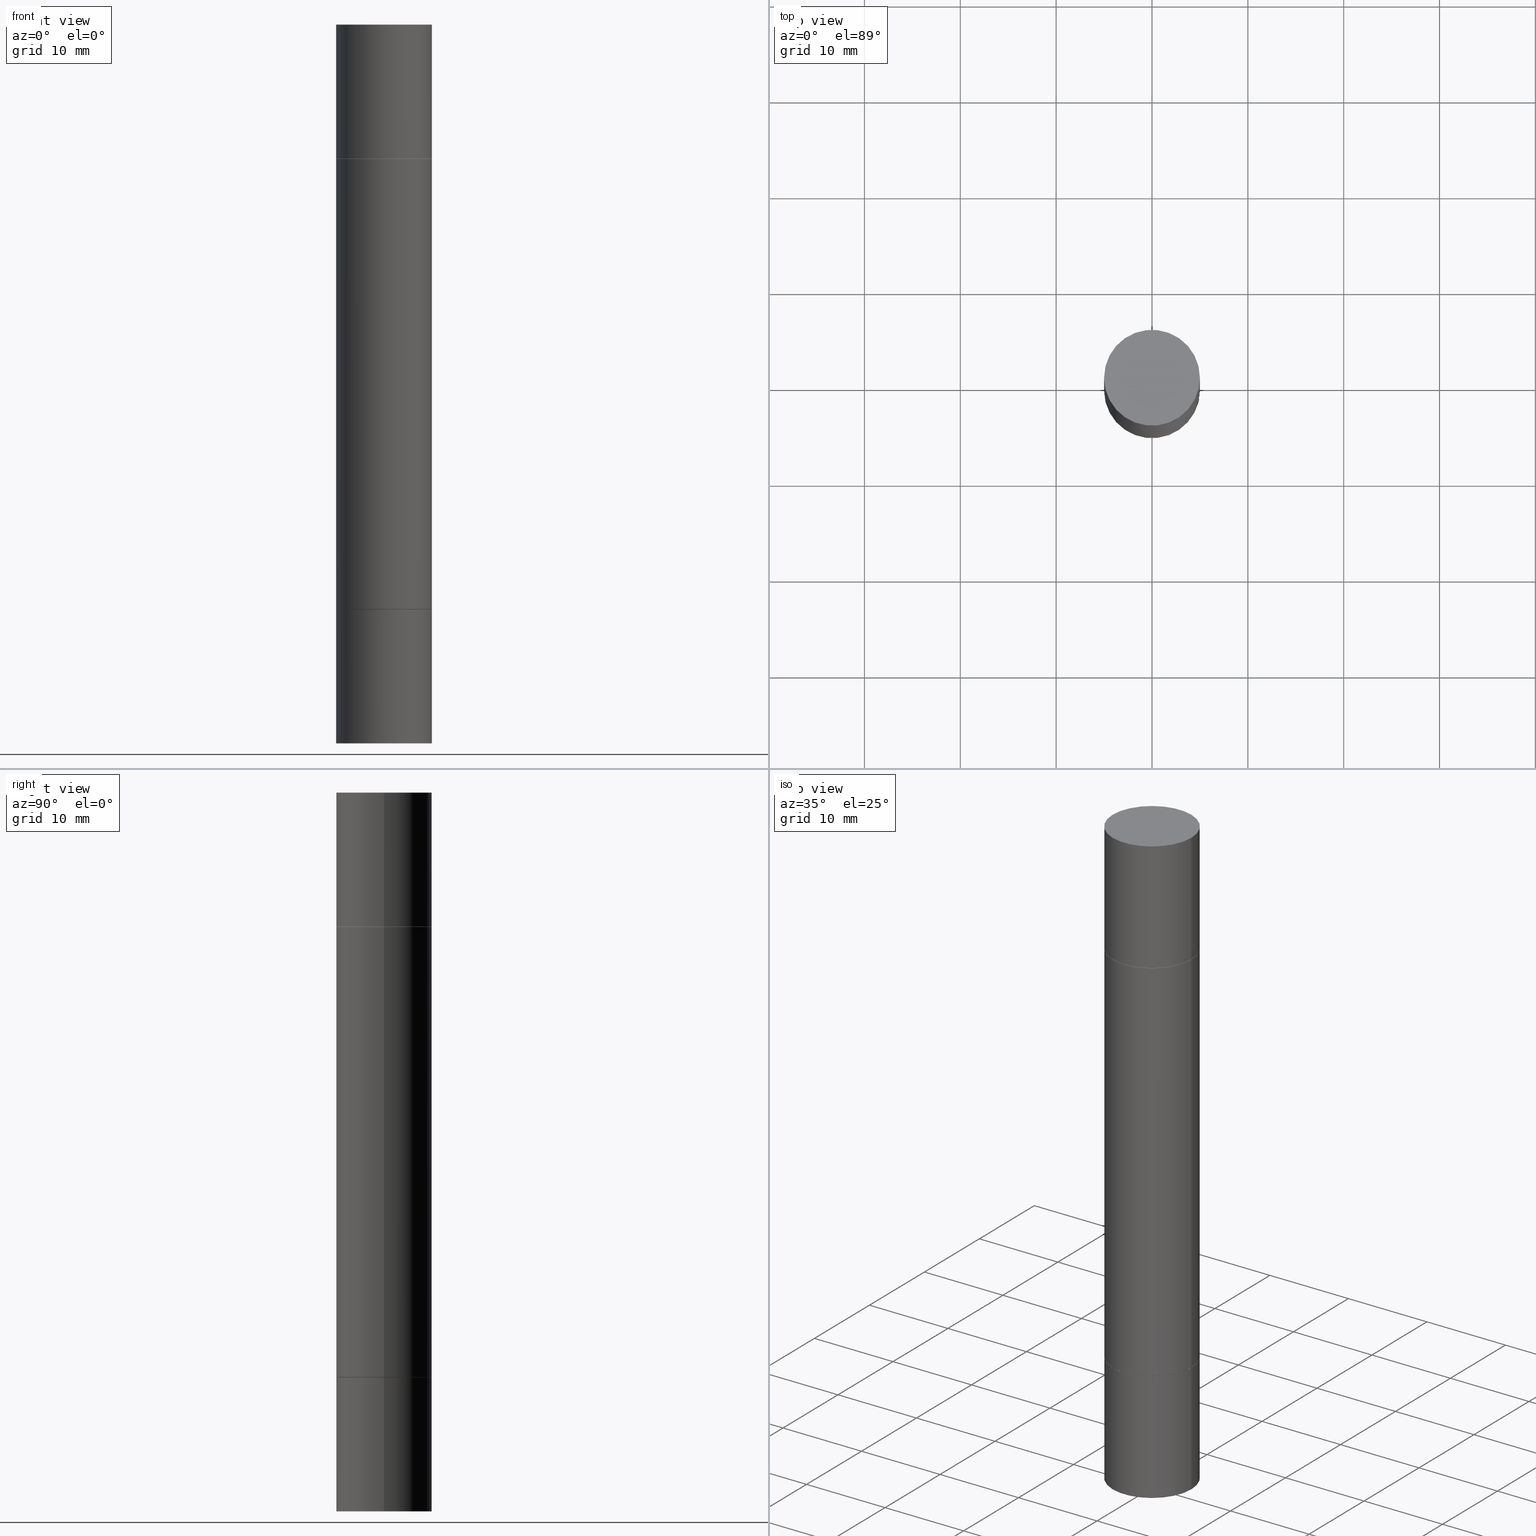
[diagram: canonical four-view strip — front | top / right | iso, engineering-drawing reading convention]
A machine part, canonical four-view strip (front | top / right | iso — engineering-drawing reading convention). The complete STEP part file that produces these views, byte-faithful:
ISO-10303-21;
HEADER;
FILE_DESCRIPTION (( 'STEP AP203' ),
    '1' );
FILE_NAME ('41557.STEP',
    '2024-03-04T15:46:23',
    ( '' ),
    ( '' ),
    'SwSTEP 2.0',
    'SolidWorks 2023',
    '' );
FILE_SCHEMA (( 'CONFIG_CONTROL_DESIGN' ));
ENDSEC;

DATA;
#1 = EDGE_LOOP ( 'NONE', ( #101, #27, #423, #283 ) ) ;
#2 = AXIS2_PLACEMENT_3D ( 'NONE', #414, #154, #259 ) ;
#3 = DIRECTION ( 'NONE',  ( -2.445468806185136877E-29, -3.492890411551753071E-15, -1.000000000000000000 ) ) ;
#4 = VERTEX_POINT ( 'NONE', #426 ) ;
#5 = ORIENTED_EDGE ( 'NONE', *, *, #65, .T. ) ;
#6 = CARTESIAN_POINT ( 'NONE',  ( -0.1968500000000000250, -5.762046994505618475E-16, -0.5521999999999996911 ) ) ;
#7 = CARTESIAN_POINT ( 'NONE',  ( -0.1968500000000000250, 3.899287883846529545E-16, 5.463695987328561936E-16 ) ) ;
#8 = FACE_OUTER_BOUND ( 'NONE', #1, .T. ) ;
#9 = ADVANCED_FACE ( 'NONE', ( #631 ), #562, .T. ) ;
#10 = DIRECTION ( 'NONE',  ( 2.445468806185136597E-29, 3.492890411551752677E-15, 1.000000000000000000 ) ) ;
#11 = ORIENTED_EDGE ( 'NONE', *, *, #138, .T. ) ;
#12 = DIRECTION ( 'NONE',  ( -2.445468806185136597E-29, -3.492890411551752677E-15, -1.000000000000000000 ) ) ;
#13 = AXIS2_PLACEMENT_3D ( 'NONE', #281, #490, #285 ) ;
#14 = AXIS2_PLACEMENT_3D ( 'NONE', #315, #522, #161 ) ;
#15 = CARTESIAN_POINT ( 'NONE',  ( -0.1958499999999999963, -6.993543635379541272E-15, -2.401599999999999735 ) ) ;
#16 = VERTEX_POINT ( 'NONE', #581 ) ;
#17 = DIRECTION ( 'NONE',  ( 2.445468806185136597E-29, 3.492890411551752677E-15, 1.000000000000000000 ) ) ;
#18 = PLANE ( 'NONE',  #629 ) ;
#19 = ORIENTED_EDGE ( 'NONE', *, *, #340, .T. ) ;
#20 = DIRECTION ( 'NONE',  ( -2.445468806185136597E-29, -3.492890411551752677E-15, -1.000000000000000000 ) ) ;
#21 = DIRECTION ( 'NONE',  ( 0.000000000000000000, 1.000000000000000000, -3.492185875197449524E-15 ) ) ;
#22 = ORIENTED_EDGE ( 'NONE', *, *, #548, .T. ) ;
#23 = PERSON_AND_ORGANIZATION_ROLE ( 'design_owner' ) ;
#24 = CIRCLE ( 'NONE', #378, 0.1958499999999999963 ) ;
#25 = CARTESIAN_POINT ( 'NONE',  ( 5.870592416128037625E-29, -1.926693730311889446E-15, -0.5521999999999996911 ) ) ;
#26 = EDGE_CURVE ( 'NONE', #311, #339, #107, .T. ) ;
#27 = ORIENTED_EDGE ( 'NONE', *, *, #532, .F. ) ;
#28 = APPROVAL_STATUS ( 'not_yet_approved' ) ;
#29 = AXIS2_PLACEMENT_3D ( 'NONE', #488, #235, #436 ) ;
#30 = DIRECTION ( 'NONE',  ( -0.7071067811864267805, 2.381258160590016583E-15, -0.7071067811866682540 ) ) ;
#31 = CALENDAR_DATE ( 2024, 4, 3 ) ;
#32 = ADVANCED_FACE ( 'NONE', ( #320 ), #255, .T. ) ;
#33 = FACE_OUTER_BOUND ( 'NONE', #528, .T. ) ;
#34 = MANIFOLD_SOLID_BREP ( 'Mirror1[3]', #256 ) ;
#35 = DATE_TIME_ROLE ( 'classification_date' ) ;
#36 = VECTOR ( 'NONE', #515, 39.37007874015748143 ) ;
#37 = DIRECTION ( 'NONE',  ( 2.445468806185136597E-29, 3.492890411551752677E-15, 1.000000000000000000 ) ) ;
#38 = CONICAL_SURFACE ( 'NONE', #353, 0.1958499999999999963, 0.7853981633972775267 ) ;
#39 = PLANE ( 'NONE',  #338 ) ;
#40 = MANIFOLD_SOLID_BREP ( 'Mirror1[1]', #499 ) ;
#41 = MANIFOLD_SOLID_BREP ( 'Body-Move/Copy2[1]', #459 ) ;
#42 = FACE_OUTER_BOUND ( 'NONE', #400, .T. ) ;
#43 = VERTEX_POINT ( 'NONE', #55 ) ;
#44 = DIRECTION ( 'NONE',  ( -2.445468806185136877E-29, -3.492890411551753071E-15, -1.000000000000000000 ) ) ;
#45 = AXIS2_PLACEMENT_3D ( 'NONE', #568, #96, #418 ) ;
#46 = CARTESIAN_POINT ( 'NONE',  ( 0.1968499999999998307, -1.168632265538556411E-14, -2.952799999999998981 ) ) ;
#47 = ORIENTED_EDGE ( 'NONE', *, *, #215, .T. ) ;
#48 = DIRECTION ( 'NONE',  ( 1.000000000000000000, -6.982962677686268288E-15, 0.000000000000000000 ) ) ;
#49 = PRODUCT_DEFINITION_FORMATION_WITH_SPECIFIED_SOURCE ( 'ANY', '', #430, .NOT_KNOWN. ) ;
#50 = ORIENTED_EDGE ( 'NONE', *, *, #113, .F. ) ;
#51 = CARTESIAN_POINT ( 'NONE',  ( -0.1968500000000000250, 3.899287883846532010E-16, -0.5511999999999995792 ) ) ;
#52 = EDGE_LOOP ( 'NONE', ( #187, #11 ) ) ;
#53 = ORIENTED_EDGE ( 'NONE', *, *, #147, .T. ) ;
#54 = DIRECTION ( 'NONE',  ( 2.438088387897960049E-29, -3.491481338843145188E-15, -1.000000000000000000 ) ) ;
#55 = CARTESIAN_POINT ( 'NONE',  ( -0.1968500000000000250, -7.948690465007109319E-15, -2.401599999999999735 ) ) ;
#56 = VECTOR ( 'NONE', #346, 39.37007874015748143 ) ;
#57 = EDGE_LOOP ( 'NONE', ( #292, #427 ) ) ;
#58 = CARTESIAN_POINT ( 'NONE',  ( 1.374596203102600181E-15, 0.1968499999999980543, -0.5512000000000001343 ) ) ;
#59 = LINE ( 'NONE', #118, #485 ) ;
#60 = FACE_OUTER_BOUND ( 'NONE', #419, .T. ) ;
#61 = EDGE_CURVE ( 'NONE', #335, #318, #158, .T. ) ;
#62 = DIRECTION ( 'NONE',  ( 1.000000000000000000, -6.982962677686262766E-15, 0.000000000000000000 ) ) ;
#63 = EDGE_LOOP ( 'NONE', ( #231, #497, #53, #451 ) ) ;
#64 = CIRCLE ( 'NONE', #466, 0.1968499999999998307 ) ;
#65 = EDGE_CURVE ( 'NONE', #261, #76, #609, .T. ) ;
#66 = CONICAL_SURFACE ( 'NONE', #279, 0.1958499999999999963, 0.7853981633972775267 ) ;
#67 = CARTESIAN_POINT ( 'NONE',  ( 5.873037884934223228E-29, -8.385141583365697263E-15, -2.401599999999999735 ) ) ;
#68 = VERTEX_POINT ( 'NONE', #176 ) ;
#69 = APPLICATION_PROTOCOL_DEFINITION ( 'international standard', 'config_control_design', 1994, #192 ) ;
#70 = AXIS2_PLACEMENT_3D ( 'NONE', #362, #534, #583 ) ;
#71 = DIRECTION ( 'NONE',  ( -2.438088387897960049E-29, 3.491481338843145188E-15, 1.000000000000000000 ) ) ;
#72 = ORIENTED_EDGE ( 'NONE', *, *, #363, .T. ) ;
#73 = CYLINDRICAL_SURFACE ( 'NONE', #193, 0.1968499999999998307 ) ;
#74 = LOCAL_TIME ( 10, 46, 23.00000000000000000, #85 ) ;
#75 = CARTESIAN_POINT ( 'NONE',  ( 0.000000000000000000, 0.000000000000000000, -1.476399999999999491 ) ) ;
#76 = VERTEX_POINT ( 'NONE', #536 ) ;
#77 = AXIS2_PLACEMENT_3D ( 'NONE', #328, #164, #634 ) ;
#78 = DIRECTION ( 'NONE',  ( 1.000000000000000000, -6.982962677686265922E-15, 4.876176775795935793E-29 ) ) ;
#79 = CC_DESIGN_PERSON_AND_ORGANIZATION_ASSIGNMENT ( #191, #608, ( #49 ) ) ;
#80 = CIRCLE ( 'NONE', #641, 0.1968500000000000250 ) ;
#81 = DIRECTION ( 'NONE',  ( -2.445468806185136597E-29, 3.491481338843145583E-15, 1.000000000000000000 ) ) ;
#82 = CALENDAR_DATE ( 2024, 4, 3 ) ;
#83 = LOCAL_TIME ( 10, 46, 23.00000000000000000, #455 ) ;
#84 = FACE_OUTER_BOUND ( 'NONE', #650, .T. ) ;
#85 = COORDINATED_UNIVERSAL_TIME_OFFSET ( 5, 0, .BEHIND. ) ;
#86 = CARTESIAN_POINT ( 'NONE',  ( 5.873037884934223228E-29, -1.923200839900334937E-15, -0.5511999999999992461 ) ) ;
#87 = AXIS2_PLACEMENT_3D ( 'NONE', #342, #481, #549 ) ;
#88 = ADVANCED_FACE ( 'NONE', ( #450 ), #276, .T. ) ;
#89 = PRODUCT_RELATED_PRODUCT_CATEGORY ( 'detail', '', ( #430 ) ) ;
#90 = CIRCLE ( 'NONE', #70, 0.1958499999999999963 ) ;
#91 = CARTESIAN_POINT ( 'NONE',  ( 5.873037884934223228E-29, -8.385141583365697263E-15, -2.401599999999999735 ) ) ;
#92 = PRODUCT_DEFINITION ( 'UNKNOWN', '', #49, #652 ) ;
#93 = DIRECTION ( 'NONE',  ( -2.445468806185136877E-29, -3.492890411551753071E-15, -1.000000000000000000 ) ) ;
#94 = VERTEX_POINT ( 'NONE', #639 ) ;
#95 = ADVANCED_FACE ( 'NONE', ( #337 ), #539, .T. ) ;
#96 = DIRECTION ( 'NONE',  ( -2.445468806185136597E-29, -3.492890411551752677E-15, -1.000000000000000000 ) ) ;
#97 = ORIENTED_EDGE ( 'NONE', *, *, #670, .T. ) ;
#98 = AXIS2_PLACEMENT_3D ( 'NONE', #573, #314, #132 ) ;
#99 = DIRECTION ( 'NONE',  ( -2.445468806185136597E-29, 3.491481338843145583E-15, 1.000000000000000000 ) ) ;
#100 = VECTOR ( 'NONE', #44, 39.37007874015748143 ) ;
#101 = ORIENTED_EDGE ( 'NONE', *, *, #207, .F. ) ;
#102 = CARTESIAN_POINT ( 'NONE',  ( -0.1958499999999999963, -5.778885032436711881E-16, -0.5511999999999992461 ) ) ;
#103 = SECURITY_CLASSIFICATION ( '', '', #558 ) ;
#104 = ORIENTED_EDGE ( 'NONE', *, *, #126, .T. ) ;
#105 = ORIENTED_EDGE ( 'NONE', *, *, #452, .T. ) ;
#106 = CARTESIAN_POINT ( 'NONE',  ( 5.870592416128037625E-29, -8.381650102026854256E-15, -2.400599999999999401 ) ) ;
#107 = LINE ( 'NONE', #46, #584 ) ;
#108 = VERTEX_POINT ( 'NONE', #590 ) ;
#109 = PLANE ( 'NONE',  #564 ) ;
#110 = CLOSED_SHELL ( 'NONE', ( #127, #247, #469, #219, #9, #144, #268, #152 ) ) ;
#111 = PRODUCT_DEFINITION_SHAPE ( 'NONE', 'NONE',  #92 ) ;
#112 = CARTESIAN_POINT ( 'NONE',  ( 0.000000000000000000, -1.031172645228302408E-14, -2.952799999999998981 ) ) ;
#113 = EDGE_CURVE ( 'NONE', #628, #43, #59, .T. ) ;
#114 = VECTOR ( 'NONE', #244, 39.37007874015748143 ) ;
#115 = VERTEX_POINT ( 'NONE', #7 ) ;
#116 = DIRECTION ( 'NONE',  ( -2.445468806185136597E-29, -3.492890411551752677E-15, -1.000000000000000000 ) ) ;
#117 = AXIS2_PLACEMENT_3D ( 'NONE', #580, #525, #48 ) ;
#118 = CARTESIAN_POINT ( 'NONE',  ( -0.1968500000000000250, 1.398703375343757393E-15, -9.682923725166783677E-30 ) ) ;
#119 = CC_DESIGN_SECURITY_CLASSIFICATION ( #103, ( #49 ) ) ;
#120 = VERTEX_POINT ( 'NONE', #179 ) ;
#121 = DIRECTION ( 'NONE',  ( 0.000000000000000000, 0.000000000000000000, 1.000000000000000000 ) ) ;
#122 = VECTOR ( 'NONE', #483, 39.37007874015748143 ) ;
#123 = CARTESIAN_POINT ( 'NONE',  ( 5.873037884934223228E-29, -1.923200839900334937E-15, -0.5511999999999992461 ) ) ;
#124 = VERTEX_POINT ( 'NONE', #233 ) ;
#125 = MECHANICAL_CONTEXT ( 'NONE', #170, 'mechanical' ) ;
#126 = EDGE_CURVE ( 'NONE', #622, #94, #646, .T. ) ;
#127 = ADVANCED_FACE ( 'NONE', ( #230 ), #66, .T. ) ;
#128 = PLANE ( 'NONE',  #13 ) ;
#129 = VERTEX_POINT ( 'NONE', #545 ) ;
#130 = APPLICATION_PROTOCOL_DEFINITION ( 'international standard', 'config_control_design', 1994, #170 ) ;
#131 = CIRCLE ( 'NONE', #610, 0.1968500000000000250 ) ;
#132 = DIRECTION ( 'NONE',  ( 1.000000000000000000, -6.982962677686265922E-15, 0.000000000000000000 ) ) ;
#133 = ORIENTED_EDGE ( 'NONE', *, *, #305, .F. ) ;
#134 = FACE_OUTER_BOUND ( 'NONE', #159, .T. ) ;
#135 = CARTESIAN_POINT ( 'NONE',  ( -0.1968500000000000250, 3.899287883846532010E-16, -0.5511999999999995792 ) ) ;
#136 = ORIENTED_EDGE ( 'NONE', *, *, #390, .F. ) ;
#137 = CARTESIAN_POINT ( 'NONE',  ( 5.873037884934223228E-29, -8.385141583365697263E-15, -2.401599999999999735 ) ) ;
#138 = EDGE_CURVE ( 'NONE', #520, #129, #661, .T. ) ;
#139 = APPROVAL_ROLE ( '' ) ;
#140 = AXIS2_PLACEMENT_3D ( 'NONE', #266, #677, #322 ) ;
#141 = DIRECTION ( 'NONE',  ( 1.000000000000000000, -6.982962677686262766E-15, 0.000000000000000000 ) ) ;
#142 = CC_DESIGN_DATE_AND_TIME_ASSIGNMENT ( #148, #35, ( #103 ) ) ;
#143 = APPROVAL_DATE_TIME ( #560, #447 ) ;
#144 = ADVANCED_FACE ( 'NONE', ( #325 ), #224, .T. ) ;
#145 = ORGANIZATION ( 'UNSPECIFIED', 'UNSPECIFIED', '' ) ;
#146 = CYLINDRICAL_SURFACE ( 'NONE', #350, 0.1968499999999998307 ) ;
#147 = EDGE_CURVE ( 'NONE', #582, #432, #680, .T. ) ;
#148 = DATE_AND_TIME ( #509, #83 ) ;
#149 = DIRECTION ( 'NONE',  ( -2.445468806185136597E-29, 3.491481338843145583E-15, 1.000000000000000000 ) ) ;
#150 = AXIS2_PLACEMENT_3D ( 'NONE', #236, #149, #357 ) ;
#151 = CARTESIAN_POINT ( 'NONE',  ( 1.374596203102613789E-15, 0.1968500000000000250, -5.463695987328526437E-16 ) ) ;
#152 = ADVANCED_FACE ( 'NONE', ( #642 ), #592, .F. ) ;
#153 =( GEOMETRIC_REPRESENTATION_CONTEXT ( 3 ) GLOBAL_UNCERTAINTY_ASSIGNED_CONTEXT ( ( #445 ) ) GLOBAL_UNIT_ASSIGNED_CONTEXT ( ( #341, #552, #648 ) ) REPRESENTATION_CONTEXT ( 'NONE', 'WORKASPACE' ) );
#154 = DIRECTION ( 'NONE',  ( 2.445468806185136597E-29, 3.492890411551752677E-15, 1.000000000000000000 ) ) ;
#155 = CARTESIAN_POINT ( 'NONE',  ( 5.873037884934223228E-29, -1.923200839900334937E-15, -0.5511999999999992461 ) ) ;
#156 = DIRECTION ( 'NONE',  ( 2.438088387897959769E-29, 3.492890411551753071E-15, 1.000000000000000000 ) ) ;
#157 = LINE ( 'NONE', #674, #173 ) ;
#158 = LINE ( 'NONE', #635, #290 ) ;
#159 = EDGE_LOOP ( 'NONE', ( #271, #105, #19, #133 ) ) ;
#160 = EDGE_CURVE ( 'NONE', #335, #622, #24, .T. ) ;
#161 = DIRECTION ( 'NONE',  ( 1.000000000000000000, -6.982962677686267499E-15, 0.000000000000000000 ) ) ;
#162 = CIRCLE ( 'NONE', #477, 0.1968500000000000250 ) ;
#163 = ORIENTED_EDGE ( 'NONE', *, *, #326, .F. ) ;
#164 = DIRECTION ( 'NONE',  ( -2.445468806185136597E-29, -3.492890411551752677E-15, -1.000000000000000000 ) ) ;
#165 = CC_DESIGN_APPROVAL ( #574, ( #103 ) ) ;
#166 = ORIENTED_EDGE ( 'NONE', *, *, #489, .F. ) ;
#167 = ORIENTED_EDGE ( 'NONE', *, *, #126, .F. ) ;
#168 = FACE_OUTER_BOUND ( 'NONE', #567, .T. ) ;
#169 = DIRECTION ( 'NONE',  ( -0.7071067811864267805, 7.493145998869918709E-15, 0.7071067811866682540 ) ) ;
#170 = APPLICATION_CONTEXT ( 'configuration controlled 3d designs of mechanical parts and assemblies' ) ;
#171 = LINE ( 'NONE', #277, #122 ) ;
#172 = DIRECTION ( 'NONE',  ( 1.000000000000000000, -6.982962677686267499E-15, 0.000000000000000000 ) ) ;
#173 = VECTOR ( 'NONE', #93, 39.37007874015748143 ) ;
#174 = ORIENTED_EDGE ( 'NONE', *, *, #326, .T. ) ;
#175 = FACE_OUTER_BOUND ( 'NONE', #420, .T. ) ;
#176 = CARTESIAN_POINT ( 'NONE',  ( 0.1968500000000000250, -3.297797043002877729E-15, -0.5511999999999995792 ) ) ;
#177 = ORIENTED_EDGE ( 'NONE', *, *, #363, .F. ) ;
#178 = CARTESIAN_POINT ( 'NONE',  ( 0.1968500000000000250, -3.297797043002877729E-15, -0.5511999999999995792 ) ) ;
#179 = CARTESIAN_POINT ( 'NONE',  ( -0.1968499999999998307, -2.190269358628626559E-15, -1.476399999999999491 ) ) ;
#180 = EDGE_LOOP ( 'NONE', ( #50, #47, #72, #415 ) ) ;
#181 = CARTESIAN_POINT ( 'NONE',  ( 0.000000000000000000, -1.031172645228302408E-14, -2.952799999999998981 ) ) ;
#182 = ADVANCED_FACE ( 'NONE', ( #595 ), #128, .T. ) ;
#183 = FACE_OUTER_BOUND ( 'NONE', #442, .T. ) ;
#184 = ORIENTED_EDGE ( 'NONE', *, *, #381, .T. ) ;
#185 = AXIS2_PLACEMENT_3D ( 'NONE', #617, #518, #309 ) ;
#186 = CARTESIAN_POINT ( 'NONE',  ( -0.1958499999999999963, -5.795723070367805287E-16, -0.5511999999999992461 ) ) ;
#187 = ORIENTED_EDGE ( 'NONE', *, *, #507, .T. ) ;
#188 = DIRECTION ( 'NONE',  ( 1.000000000000000000, -6.982962677686267499E-15, 0.000000000000000000 ) ) ;
#189 = ADVANCED_FACE ( 'NONE', ( #494 ), #18, .T. ) ;
#190 = LINE ( 'NONE', #291, #258 ) ;
#191 = PERSON_AND_ORGANIZATION ( #565, #145 ) ;
#192 = APPLICATION_CONTEXT ( 'configuration controlled 3d designs of mechanical parts and assemblies' ) ;
#193 = AXIS2_PLACEMENT_3D ( 'NONE', #181, #336, #232 ) ;
#194 = VECTOR ( 'NONE', #169, 39.37007874015748143 ) ;
#195 = DIRECTION ( 'NONE',  ( 1.000000000000000000, -6.982962677686267499E-15, 0.000000000000000000 ) ) ;
#196 = CALENDAR_DATE ( 2024, 4, 3 ) ;
#197 = CONICAL_SURFACE ( 'NONE', #575, 0.1958499999999999963, 0.7853981633972775267 ) ;
#198 = ADVANCED_FACE ( 'NONE', ( #183 ), #601, .F. ) ;
#199 = CARTESIAN_POINT ( 'NONE',  ( 0.1968500000000000250, -1.168632265538556569E-14, -2.952799999999998981 ) ) ;
#200 = DATE_AND_TIME ( #664, #74 ) ;
#201 = EDGE_CURVE ( 'NONE', #43, #16, #672, .T. ) ;
#202 = AXIS2_PLACEMENT_3D ( 'NONE', #503, #20, #293 ) ;
#203 = DIRECTION ( 'NONE',  ( -2.445468806185136877E-29, -3.492890411551753071E-15, -1.000000000000000000 ) ) ;
#204 = EDGE_CURVE ( 'NONE', #108, #115, #302, .T. ) ;
#205 = LINE ( 'NONE', #358, #556 ) ;
#206 = AXIS2_PLACEMENT_3D ( 'NONE', #25, #37, #251 ) ;
#207 = EDGE_CURVE ( 'NONE', #344, #120, #190, .T. ) ;
#208 = DIRECTION ( 'NONE',  ( 1.000000000000000000, -6.982962677686267499E-15, 0.000000000000000000 ) ) ;
#209 = ORIENTED_EDGE ( 'NONE', *, *, #207, .T. ) ;
#210 = CYLINDRICAL_SURFACE ( 'NONE', #45, 0.1968499999999998307 ) ;
#211 = DIRECTION ( 'NONE',  ( 1.000000000000000000, -6.982962677686267499E-15, 0.000000000000000000 ) ) ;
#212 = DIRECTION ( 'NONE',  ( 1.000000000000000000, -6.982962677686267499E-15, 0.000000000000000000 ) ) ;
#213 = ORIENTED_EDGE ( 'NONE', *, *, #463, .F. ) ;
#214 = DIRECTION ( 'NONE',  ( 1.000000000000000000, -6.982962677686268288E-15, 0.000000000000000000 ) ) ;
#215 = EDGE_CURVE ( 'NONE', #628, #492, #588, .T. ) ;
#216 = VECTOR ( 'NONE', #417, 39.37007874015748143 ) ;
#217 = ORIENTED_EDGE ( 'NONE', *, *, #390, .T. ) ;
#218 = DIRECTION ( 'NONE',  ( 2.445468806185136597E-29, 3.492890411551752677E-15, 1.000000000000000000 ) ) ;
#219 = ADVANCED_FACE ( 'NONE', ( #303 ), #294, .F. ) ;
#220 = LOCAL_TIME ( 10, 46, 23.00000000000000000, #660 ) ;
#221 = ORIENTED_EDGE ( 'NONE', *, *, #160, .T. ) ;
#222 = ORIENTED_EDGE ( 'NONE', *, *, #305, .T. ) ;
#223 = DIRECTION ( 'NONE',  ( -1.000000000000000000, 6.982962677686265922E-15, -9.839502134516470631E-33 ) ) ;
#224 = CYLINDRICAL_SURFACE ( 'NONE', #87, 0.1968499999999998307 ) ;
#225 = ORIENTED_EDGE ( 'NONE', *, *, #443, .F. ) ;
#226 = DIRECTION ( 'NONE',  ( 2.445468806185136597E-29, 3.492890411551752677E-15, 1.000000000000000000 ) ) ;
#227 = CIRCLE ( 'NONE', #206, 0.1968500000000000250 ) ;
#228 = ORIENTED_EDGE ( 'NONE', *, *, #333, .T. ) ;
#229 = DIRECTION ( 'NONE',  ( 1.000000000000000000, -6.982962677686268288E-15, 0.000000000000000000 ) ) ;
#230 = FACE_OUTER_BOUND ( 'NONE', #551, .T. ) ;
#231 = ORIENTED_EDGE ( 'NONE', *, *, #138, .F. ) ;
#232 = DIRECTION ( 'NONE',  ( 1.000000000000000000, -6.982962677686264344E-15, 0.000000000000000000 ) ) ;
#233 = CARTESIAN_POINT ( 'NONE',  ( 0.1958499999999999963, -3.290814080325190531E-15, -0.5511999999999992461 ) ) ;
#234 = ORIENTED_EDGE ( 'NONE', *, *, #463, .T. ) ;
#235 = DIRECTION ( 'NONE',  ( -0.000000000000000000, -3.492185875197449130E-15, -1.000000000000000000 ) ) ;
#236 = CARTESIAN_POINT ( 'NONE',  ( 5.873037884934223228E-29, -8.385141583365697263E-15, -2.401599999999999735 ) ) ;
#237 = ORIENTED_EDGE ( 'NONE', *, *, #355, .F. ) ;
#238 = APPROVAL_STATUS ( 'not_yet_approved' ) ;
#239 = CIRCLE ( 'NONE', #185, 0.1968500000000000250 ) ;
#240 = DIRECTION ( 'NONE',  ( -2.445468806185136597E-29, -3.492890411551752677E-15, -1.000000000000000000 ) ) ;
#241 = ORIENTED_EDGE ( 'NONE', *, *, #443, .T. ) ;
#242 = LOCAL_TIME ( 10, 46, 23.00000000000000000, #298 ) ;
#243 = PERSON_AND_ORGANIZATION ( #565, #145 ) ;
#244 = DIRECTION ( 'NONE',  ( 0.7071067811864267805, -7.407546758113824138E-15, -0.7071067811866682540 ) ) ;
#245 = CONICAL_SURFACE ( 'NONE', #77, 0.1958499999999999963, 0.7853981633972775267 ) ;
#246 = PERSON_AND_ORGANIZATION ( #565, #145 ) ;
#247 = ADVANCED_FACE ( 'NONE', ( #84 ), #146, .T. ) ;
#248 = CARTESIAN_POINT ( 'NONE',  ( 0.1968500000000000250, -1.372515848155552113E-15, 5.463695987328526437E-16 ) ) ;
#249 = PERSON_AND_ORGANIZATION_ROLE ( 'creator' ) ;
#250 = AXIS2_PLACEMENT_3D ( 'NONE', #75, #288, #21 ) ;
#251 = DIRECTION ( 'NONE',  ( 1.000000000000000000, -6.982962677686267499E-15, 0.000000000000000000 ) ) ;
#252 = CARTESIAN_POINT ( 'NONE',  ( 0.1968500000000000250, -9.756246305129394287E-15, -2.400599999999999401 ) ) ;
#253 = APPROVAL_DATE_TIME ( #200, #574 ) ;
#254 = PLANE ( 'NONE',  #535 ) ;
#255 = CYLINDRICAL_SURFACE ( 'NONE', #517, 0.1968500000000000250 ) ;
#256 = CLOSED_SHELL ( 'NONE', ( #88, #182, #616, #95 ) ) ;
#257 = EDGE_CURVE ( 'NONE', #520, #582, #607, .T. ) ;
#258 = VECTOR ( 'NONE', #203, 39.37007874015748143 ) ;
#259 = DIRECTION ( 'NONE',  ( 1.000000000000000000, -6.982962677686267499E-15, 0.000000000000000000 ) ) ;
#260 = DIRECTION ( 'NONE',  ( -2.445468806185136877E-29, -3.492890411551753071E-15, -1.000000000000000000 ) ) ;
#261 = VERTEX_POINT ( 'NONE', #248 ) ;
#262 = CARTESIAN_POINT ( 'NONE',  ( 5.873037884934223228E-29, -1.923200839900336120E-15, -0.5511999999999995792 ) ) ;
#263 = CC_DESIGN_DATE_AND_TIME_ASSIGNMENT ( #408, #615, ( #92 ) ) ;
#264 = CC_DESIGN_PERSON_AND_ORGANIZATION_ASSIGNMENT ( #651, #23, ( #430 ) ) ;
#265 = ORIENTED_EDGE ( 'NONE', *, *, #304, .F. ) ;
#266 = CARTESIAN_POINT ( 'NONE',  ( 0.000000000000000000, 0.000000000000000000, 0.000000000000000000 ) ) ;
#267 = ORIENTED_EDGE ( 'NONE', *, *, #287, .T. ) ;
#268 = ADVANCED_FACE ( 'NONE', ( #33 ), #406, .T. ) ;
#269 = CARTESIAN_POINT ( 'NONE',  ( 5.873037884934223228E-29, -1.923200839900334937E-15, -0.5511999999999992461 ) ) ;
#270 = CIRCLE ( 'NONE', #468, 0.1968500000000000250 ) ;
#271 = ORIENTED_EDGE ( 'NONE', *, *, #570, .F. ) ;
#272 = MANIFOLD_SOLID_BREP ( 'Mirror1[4]', #299 ) ;
#273 = ORIENTED_EDGE ( 'NONE', *, *, #287, .F. ) ;
#274 = LINE ( 'NONE', #371, #369 ) ;
#275 = CC_DESIGN_APPROVAL ( #331, ( #49 ) ) ;
#276 = CYLINDRICAL_SURFACE ( 'NONE', #510, 0.1968500000000000250 ) ;
#277 = CARTESIAN_POINT ( 'NONE',  ( 0.1968500000000000250, -1.168632265538556569E-14, -2.952799999999998981 ) ) ;
#278 = DIRECTION ( 'NONE',  ( -2.445468806185136597E-29, -3.492890411551752677E-15, -1.000000000000000000 ) ) ;
#279 = AXIS2_PLACEMENT_3D ( 'NONE', #484, #330, #62 ) ;
#280 = ADVANCED_BREP_SHAPE_REPRESENTATION ( '41557', ( #41, #40, #34, #272, #491, #295 ), #153 ) ;
#281 = CARTESIAN_POINT ( 'NONE',  ( 1.374596203102613789E-15, 0.1968500000000000250, -5.463695987328526437E-16 ) ) ;
#282 = AXIS2_PLACEMENT_3D ( 'NONE', #377, #587, #424 ) ;
#283 = ORIENTED_EDGE ( 'NONE', *, *, #670, .F. ) ;
#284 = PERSON_AND_ORGANIZATION ( #565, #145 ) ;
#285 = DIRECTION ( 'NONE',  ( -1.000000000000000000, 6.982962677686265922E-15, -9.839502134516470631E-33 ) ) ;
#286 = ORIENTED_EDGE ( 'NONE', *, *, #65, .F. ) ;
#287 = EDGE_CURVE ( 'NONE', #76, #261, #270, .T. ) ;
#288 = DIRECTION ( 'NONE',  ( 0.000000000000000000, 3.492185875197449524E-15, 1.000000000000000000 ) ) ;
#289 = ORIENTED_EDGE ( 'NONE', *, *, #204, .T. ) ;
#290 = VECTOR ( 'NONE', #366, 39.37007874015748143 ) ;
#291 = CARTESIAN_POINT ( 'NONE',  ( -0.1968499999999998307, -8.961237421421701017E-15, -2.952799999999998981 ) ) ;
#292 = ORIENTED_EDGE ( 'NONE', *, *, #388, .F. ) ;
#293 = DIRECTION ( 'NONE',  ( 1.000000000000000000, -6.982962677686267499E-15, 0.000000000000000000 ) ) ;
#294 = PLANE ( 'NONE',  #323 ) ;
#295 = AXIS2_PLACEMENT_3D ( 'NONE', #547, #121, #498 ) ;
#296 = PERSON_AND_ORGANIZATION_ROLE ( 'creator' ) ;
#297 = FACE_OUTER_BOUND ( 'NONE', #327, .T. ) ;
#298 = COORDINATED_UNIVERSAL_TIME_OFFSET ( 5, 0, .BEHIND. ) ;
#299 = CLOSED_SHELL ( 'NONE', ( #643, #368, #487, #32 ) ) ;
#300 = DIRECTION ( 'NONE',  ( -2.438088387897959769E-29, -3.492890411551753071E-15, -1.000000000000000000 ) ) ;
#301 = CIRCLE ( 'NONE', #653, 0.1958499999999999963 ) ;
#302 = CIRCLE ( 'NONE', #413, 0.1968500000000000250 ) ;
#303 = FACE_OUTER_BOUND ( 'NONE', #52, .T. ) ;
#304 = EDGE_CURVE ( 'NONE', #622, #335, #301, .T. ) ;
#305 = EDGE_CURVE ( 'NONE', #124, #311, #604, .T. ) ;
#306 = CARTESIAN_POINT ( 'NONE',  ( 7.220980290903470182E-29, -1.030964609733603853E-14, -2.952799999999999869 ) ) ;
#307 = ORIENTED_EDGE ( 'NONE', *, *, #409, .T. ) ;
#308 = ADVANCED_FACE ( 'NONE', ( #659 ), #356, .T. ) ;
#309 = DIRECTION ( 'NONE',  ( 1.000000000000000000, -6.982962677686262766E-15, 0.000000000000000000 ) ) ;
#310 = VERTEX_POINT ( 'NONE', #135 ) ;
#311 = VERTEX_POINT ( 'NONE', #559 ) ;
#312 = DIRECTION ( 'NONE',  ( 1.000000000000000000, -6.982962677686265922E-15, 0.000000000000000000 ) ) ;
#313 = CIRCLE ( 'NONE', #282, 0.1968500000000000250 ) ;
#314 = DIRECTION ( 'NONE',  ( 2.445468806185136597E-29, 3.492890411551752677E-15, 1.000000000000000000 ) ) ;
#315 = CARTESIAN_POINT ( 'NONE',  ( 5.873037884934223228E-29, -1.923200839900336120E-15, -0.5511999999999995792 ) ) ;
#316 = ADVANCED_FACE ( 'NONE', ( #297 ), #39, .F. ) ;
#317 = ORIENTED_EDGE ( 'NONE', *, *, #375, .T. ) ;
#318 = VERTEX_POINT ( 'NONE', #252 ) ;
#319 = CARTESIAN_POINT ( 'NONE',  ( -0.1958499999999999963, -5.795723070367805287E-16, -0.5511999999999992461 ) ) ;
#320 = FACE_OUTER_BOUND ( 'NONE', #486, .T. ) ;
#321 = ORIENTED_EDGE ( 'NONE', *, *, #26, .F. ) ;
#322 = DIRECTION ( 'NONE',  ( 1.000000000000000000, -6.982962677686265922E-15, 4.876176775795935793E-29 ) ) ;
#323 = AXIS2_PLACEMENT_3D ( 'NONE', #453, #611, #457 ) ;
#324 = CIRCLE ( 'NONE', #14, 0.1968500000000000250 ) ;
#325 = FACE_OUTER_BOUND ( 'NONE', #359, .T. ) ;
#326 = EDGE_CURVE ( 'NONE', #582, #94, #654, .T. ) ;
#327 = EDGE_LOOP ( 'NONE', ( #22, #370 ) ) ;
#328 = CARTESIAN_POINT ( 'NONE',  ( 5.873037884934223228E-29, -1.923200839900334937E-15, -0.5511999999999992461 ) ) ;
#329 = APPROVAL_PERSON_ORGANIZATION ( #405, #574, #354 ) ;
#330 = DIRECTION ( 'NONE',  ( -2.445468806185136597E-29, 3.491481338843145583E-15, 1.000000000000000000 ) ) ;
#331 = APPROVAL ( #658, 'UNSPECIFIED' ) ;
#332 = ORIENTED_EDGE ( 'NONE', *, *, #147, .F. ) ;
#333 = EDGE_CURVE ( 'NONE', #108, #640, #663, .T. ) ;
#334 = DIRECTION ( 'NONE',  ( -2.445468806185136597E-29, 3.491481338843145583E-15, 1.000000000000000000 ) ) ;
#335 = VERTEX_POINT ( 'NONE', #501 ) ;
#336 = DIRECTION ( 'NONE',  ( -2.445468806185136597E-29, -3.492890411551752677E-15, -1.000000000000000000 ) ) ;
#337 = FACE_OUTER_BOUND ( 'NONE', #454, .T. ) ;
#338 = AXIS2_PLACEMENT_3D ( 'NONE', #86, #300, #460 ) ;
#339 = VERTEX_POINT ( 'NONE', #511 ) ;
#340 = EDGE_CURVE ( 'NONE', #344, #311, #227, .T. ) ;
#341 =( CONVERSION_BASED_UNIT ( 'INCH', #393 ) LENGTH_UNIT ( ) NAMED_UNIT ( #667 ) );
#342 = CARTESIAN_POINT ( 'NONE',  ( 0.000000000000000000, -1.031172645228302408E-14, -2.952799999999998981 ) ) ;
#343 = CIRCLE ( 'NONE', #29, 0.1968499999999998307 ) ;
#344 = VERTEX_POINT ( 'NONE', #410 ) ;
#345 = PLANE ( 'NONE',  #384 ) ;
#346 = DIRECTION ( 'NONE',  ( -2.445468806185136877E-29, -3.492890411551753071E-15, -1.000000000000000000 ) ) ;
#347 = EDGE_LOOP ( 'NONE', ( #397, #209, #602, #321 ) ) ;
#348 = DIRECTION ( 'NONE',  ( 2.445468806185136597E-29, 3.492890411551752677E-15, 1.000000000000000000 ) ) ;
#349 = PERSON_AND_ORGANIZATION ( #565, #145 ) ;
#350 = AXIS2_PLACEMENT_3D ( 'NONE', #505, #240, #561 ) ;
#351 = CIRCLE ( 'NONE', #117, 0.1958499999999999963 ) ;
#352 = CARTESIAN_POINT ( 'NONE',  ( 7.220980290903470182E-29, 2.080354946989631982E-18, 5.463695987328526437E-16 ) ) ;
#353 = AXIS2_PLACEMENT_3D ( 'NONE', #597, #12, #229 ) ;
#354 = APPROVAL_ROLE ( '' ) ;
#355 = EDGE_CURVE ( 'NONE', #318, #94, #239, .T. ) ;
#356 = CYLINDRICAL_SURFACE ( 'NONE', #462, 0.1968500000000000250 ) ;
#357 = DIRECTION ( 'NONE',  ( 1.000000000000000000, -6.982962677686262766E-15, 0.000000000000000000 ) ) ;
#358 = CARTESIAN_POINT ( 'NONE',  ( 0.1958499999999999963, -3.290814080325190531E-15, -0.5511999999999992461 ) ) ;
#359 = EDGE_LOOP ( 'NONE', ( #163, #387, #184, #655 ) ) ;
#360 = CARTESIAN_POINT ( 'NONE',  ( 5.873037884934223228E-29, -1.923200839900336120E-15, -0.5511999999999995792 ) ) ;
#361 = ORIENTED_EDGE ( 'NONE', *, *, #434, .T. ) ;
#362 = CARTESIAN_POINT ( 'NONE',  ( 5.873037884934223228E-29, -1.923200839900334937E-15, -0.5511999999999992461 ) ) ;
#363 = EDGE_CURVE ( 'NONE', #492, #16, #465, .T. ) ;
#364 = FACE_OUTER_BOUND ( 'NONE', #347, .T. ) ;
#365 = AXIS2_PLACEMENT_3D ( 'NONE', #123, #10, #386 ) ;
#366 = DIRECTION ( 'NONE',  ( 0.7071067811864267805, -2.468850131080992517E-15, 0.7071067811866682540 ) ) ;
#367 = CARTESIAN_POINT ( 'NONE',  ( 0.1968500000000000250, -1.168424230043858014E-14, -2.952799999999999869 ) ) ;
#368 = ADVANCED_FACE ( 'NONE', ( #42 ), #254, .T. ) ;
#369 = VECTOR ( 'NONE', #3, 39.37007874015748143 ) ;
#370 = ORIENTED_EDGE ( 'NONE', *, *, #570, .T. ) ;
#371 = CARTESIAN_POINT ( 'NONE',  ( -0.1968500000000000250, -8.961237421421697861E-15, -2.952799999999998981 ) ) ;
#372 = EDGE_LOOP ( 'NONE', ( #234, #605 ) ) ;
#373 = ORIENTED_EDGE ( 'NONE', *, *, #668, .T. ) ;
#374 = CYLINDRICAL_SURFACE ( 'NONE', #140, 0.1968500000000000250 ) ;
#375 = EDGE_CURVE ( 'NONE', #76, #554, #470, .T. ) ;
#376 = DIRECTION ( 'NONE',  ( -2.445468806185136877E-29, 3.491481338843145188E-15, 1.000000000000000000 ) ) ;
#377 = CARTESIAN_POINT ( 'NONE',  ( 5.873037884934223228E-29, -8.385141583365697263E-15, -2.401599999999999735 ) ) ;
#378 = AXIS2_PLACEMENT_3D ( 'NONE', #391, #334, #542 ) ;
#379 = CIRCLE ( 'NONE', #394, 0.1968500000000000250 ) ;
#380 = DIRECTION ( 'NONE',  ( 1.000000000000000000, -6.982962677686267499E-15, 0.000000000000000000 ) ) ;
#381 = EDGE_CURVE ( 'NONE', #432, #318, #157, .T. ) ;
#382 = ORIENTED_EDGE ( 'NONE', *, *, #409, .F. ) ;
#383 = CC_DESIGN_APPROVAL ( #447, ( #92 ) ) ;
#384 = AXIS2_PLACEMENT_3D ( 'NONE', #555, #439, #444 ) ;
#385 = CC_DESIGN_PERSON_AND_ORGANIZATION_ASSIGNMENT ( #246, #249, ( #92 ) ) ;
#386 = DIRECTION ( 'NONE',  ( 1.000000000000000000, -6.982962677686268288E-15, 0.000000000000000000 ) ) ;
#387 = ORIENTED_EDGE ( 'NONE', *, *, #668, .F. ) ;
#388 = EDGE_CURVE ( 'NONE', #492, #628, #512, .T. ) ;
#389 = CARTESIAN_POINT ( 'NONE',  ( 5.870592416128037625E-29, -1.926693730311889446E-15, -0.5521999999999996911 ) ) ;
#390 = EDGE_CURVE ( 'NONE', #310, #640, #80, .T. ) ;
#391 = CARTESIAN_POINT ( 'NONE',  ( 5.873037884934223228E-29, -8.385141583365697263E-15, -2.401599999999999735 ) ) ;
#392 = ORIENTED_EDGE ( 'NONE', *, *, #589, .T. ) ;
#393 = LENGTH_MEASURE_WITH_UNIT ( LENGTH_MEASURE( 0.02539999999999999897 ), #544 );
#394 = AXIS2_PLACEMENT_3D ( 'NONE', #472, #480, #433 ) ;
#395 = AXIS2_PLACEMENT_3D ( 'NONE', #67, #71, #396 ) ;
#396 = DIRECTION ( 'NONE',  ( 1.000000000000000000, -6.982962677686265922E-15, 4.876176775795935793E-29 ) ) ;
#397 = ORIENTED_EDGE ( 'NONE', *, *, #340, .F. ) ;
#398 = CARTESIAN_POINT ( 'NONE',  ( 3.610490145451734531E-29, -5.154823048668018475E-15, -1.476399999999999491 ) ) ;
#399 = DIRECTION ( 'NONE',  ( -2.445468806185136597E-29, 3.491481338843145583E-15, 1.000000000000000000 ) ) ;
#400 = EDGE_LOOP ( 'NONE', ( #289, #543 ) ) ;
#401 = DIRECTION ( 'NONE',  ( -0.000000000000000000, -3.492185875197449130E-15, -1.000000000000000000 ) ) ;
#402 = CARTESIAN_POINT ( 'NONE',  ( 7.220980290903470182E-29, -1.030964609733603853E-14, -2.952799999999999869 ) ) ;
#403 = COORDINATED_UNIVERSAL_TIME_OFFSET ( 5, 0, .BEHIND. ) ;
#404 = CARTESIAN_POINT ( 'NONE',  ( 7.220980290903470182E-29, 2.080354946989631982E-18, 5.463695987328526437E-16 ) ) ;
#405 = PERSON_AND_ORGANIZATION ( #565, #145 ) ;
#406 = CONICAL_SURFACE ( 'NONE', #500, 0.1958499999999999963, 0.7853981633972775267 ) ;
#407 = DIRECTION ( 'NONE',  ( -2.445468806185136877E-29, -3.492890411551753071E-15, -1.000000000000000000 ) ) ;
#408 = DATE_AND_TIME ( #196, #416 ) ;
#409 = EDGE_CURVE ( 'NONE', #640, #310, #599, .T. ) ;
#410 = CARTESIAN_POINT ( 'NONE',  ( -0.1968500000000000250, -5.762046994505618475E-16, -0.5521999999999996911 ) ) ;
#411 = SHAPE_DEFINITION_REPRESENTATION ( #111, #280 ) ;
#412 = DIRECTION ( 'NONE',  ( 0.7071067811864267805, -7.407546758113824138E-15, -0.7071067811866682540 ) ) ;
#413 = AXIS2_PLACEMENT_3D ( 'NONE', #404, #563, #613 ) ;
#414 = CARTESIAN_POINT ( 'NONE',  ( 5.873037884934223228E-29, -1.923200839900336120E-15, -0.5511999999999995792 ) ) ;
#415 = ORIENTED_EDGE ( 'NONE', *, *, #201, .F. ) ;
#416 = LOCAL_TIME ( 10, 46, 23.00000000000000000, #403 ) ;
#417 = DIRECTION ( 'NONE',  ( -0.7071067811864267805, 2.381258160590016583E-15, -0.7071067811866682540 ) ) ;
#418 = DIRECTION ( 'NONE',  ( 1.000000000000000000, -6.982962677686264344E-15, 0.000000000000000000 ) ) ;
#419 = EDGE_LOOP ( 'NONE', ( #382, #136 ) ) ;
#420 = EDGE_LOOP ( 'NONE', ( #540, #523 ) ) ;
#421 = CARTESIAN_POINT ( 'NONE',  ( 1.374596203102600181E-15, 0.1968499999999916150, -2.401600000000000623 ) ) ;
#422 = ORIENTED_EDGE ( 'NONE', *, *, #113, .T. ) ;
#423 = ORIENTED_EDGE ( 'NONE', *, *, #26, .T. ) ;
#424 = DIRECTION ( 'NONE',  ( 1.000000000000000000, -6.982962677686262766E-15, 0.000000000000000000 ) ) ;
#425 = VECTOR ( 'NONE', #30, 39.37007874015748143 ) ;
#426 = CARTESIAN_POINT ( 'NONE',  ( -0.1958499999999999963, -5.778885032436711881E-16, -0.5511999999999992461 ) ) ;
#427 = ORIENTED_EDGE ( 'NONE', *, *, #215, .F. ) ;
#428 = FACE_OUTER_BOUND ( 'NONE', #372, .T. ) ;
#429 = ADVANCED_FACE ( 'NONE', ( #364 ), #210, .T. ) ;
#430 = PRODUCT ( '41557', '41557', '', ( #125 ) ) ;
#431 = ORIENTED_EDGE ( 'NONE', *, *, #452, .F. ) ;
#432 = VERTEX_POINT ( 'NONE', #669 ) ;
#433 = DIRECTION ( 'NONE',  ( 1.000000000000000000, -6.982962677686267499E-15, 0.000000000000000000 ) ) ;
#434 = EDGE_CURVE ( 'NONE', #129, #432, #205, .T. ) ;
#435 = CARTESIAN_POINT ( 'NONE',  ( 5.870592416128037625E-29, -1.926693730311889446E-15, -0.5521999999999996911 ) ) ;
#436 = DIRECTION ( 'NONE',  ( 0.000000000000000000, 1.000000000000000000, -4.163344669033678790E-15 ) ) ;
#437 = DIRECTION ( 'NONE',  ( 1.000000000000000000, -6.982962677686267499E-15, 0.000000000000000000 ) ) ;
#438 = ORIENTED_EDGE ( 'NONE', *, *, #381, .F. ) ;
#439 = DIRECTION ( 'NONE',  ( 2.438088387897959769E-29, 3.492890411551753071E-15, 1.000000000000000000 ) ) ;
#440 = ADVANCED_FACE ( 'NONE', ( #168 ), #374, .T. ) ;
#441 = CARTESIAN_POINT ( 'NONE',  ( 0.000000000000000000, -1.031172645228302408E-14, -2.952799999999998981 ) ) ;
#442 = EDGE_LOOP ( 'NONE', ( #502, #97 ) ) ;
#443 = EDGE_CURVE ( 'NONE', #94, #318, #131, .T. ) ;
#444 = DIRECTION ( 'NONE',  ( -1.000000000000000000, 6.982962677686265922E-15, -9.839502134516470631E-33 ) ) ;
#445 = UNCERTAINTY_MEASURE_WITH_UNIT (LENGTH_MEASURE( 1.000000000000000082E-05 ), #341, 'distance_accuracy_value', 'NONE');
#446 = CARTESIAN_POINT ( 'NONE',  ( 1.374596203102613789E-15, 0.1968499999999896999, -2.952800000000000313 ) ) ;
#447 = APPROVAL ( #238, 'UNSPECIFIED' ) ;
#448 = EDGE_LOOP ( 'NONE', ( #273, #317, #596, #533 ) ) ;
#449 = AXIS2_PLACEMENT_3D ( 'NONE', #155, #531, #519 ) ;
#450 = FACE_OUTER_BOUND ( 'NONE', #448, .T. ) ;
#451 = ORIENTED_EDGE ( 'NONE', *, *, #434, .F. ) ;
#452 = EDGE_CURVE ( 'NONE', #4, #344, #476, .T. ) ;
#453 = CARTESIAN_POINT ( 'NONE',  ( 5.873037884934223228E-29, -1.923200839900334937E-15, -0.5511999999999992461 ) ) ;
#454 = EDGE_LOOP ( 'NONE', ( #633, #286, #392, #516 ) ) ;
#455 = COORDINATED_UNIVERSAL_TIME_OFFSET ( 5, 0, .BEHIND. ) ;
#456 = CIRCLE ( 'NONE', #526, 0.1958499999999999963 ) ;
#457 = DIRECTION ( 'NONE',  ( 1.000000000000000000, -6.982962677686265922E-15, 9.839502134516470631E-33 ) ) ;
#458 = APPROVAL_DATE_TIME ( #612, #331 ) ;
#459 = CLOSED_SHELL ( 'NONE', ( #440, #189, #527, #308 ) ) ;
#460 = DIRECTION ( 'NONE',  ( 1.000000000000000000, -6.982962677686265922E-15, 9.839502134516470631E-33 ) ) ;
#461 = PERSON_AND_ORGANIZATION_ROLE ( 'classification_officer' ) ;
#462 = AXIS2_PLACEMENT_3D ( 'NONE', #553, #513, #78 ) ;
#463 = EDGE_CURVE ( 'NONE', #16, #43, #313, .T. ) ;
#464 = CARTESIAN_POINT ( 'NONE',  ( 0.1958499999999999963, -3.290814080325190531E-15, -0.5511999999999992461 ) ) ;
#465 = LINE ( 'NONE', #624, #36 ) ;
#466 = AXIS2_PLACEMENT_3D ( 'NONE', #398, #401, #606 ) ;
#467 = DIRECTION ( 'NONE',  ( 2.445468806185136597E-29, 3.492890411551752677E-15, 1.000000000000000000 ) ) ;
#468 = AXIS2_PLACEMENT_3D ( 'NONE', #352, #348, #557 ) ;
#469 = ADVANCED_FACE ( 'NONE', ( #576 ), #197, .T. ) ;
#470 = LINE ( 'NONE', #572, #100 ) ;
#471 = CARTESIAN_POINT ( 'NONE',  ( 0.000000000000000000, -1.031172645228302408E-14, -2.952799999999998981 ) ) ;
#472 = CARTESIAN_POINT ( 'NONE',  ( 5.870592416128037625E-29, -1.926693730311889446E-15, -0.5521999999999996911 ) ) ;
#473 = DIRECTION ( 'NONE',  ( 2.445468806185136597E-29, 3.492890411551752677E-15, 1.000000000000000000 ) ) ;
#474 = AXIS2_PLACEMENT_3D ( 'NONE', #435, #226, #437 ) ;
#475 = EDGE_LOOP ( 'NONE', ( #586, #673, #217, #647 ) ) ;
#476 = LINE ( 'NONE', #319, #216 ) ;
#477 = AXIS2_PLACEMENT_3D ( 'NONE', #571, #218, #312 ) ;
#478 = EDGE_LOOP ( 'NONE', ( #579, #265 ) ) ;
#479 = ORIENTED_EDGE ( 'NONE', *, *, #204, .F. ) ;
#480 = DIRECTION ( 'NONE',  ( 2.445468806185136597E-29, 3.492890411551752677E-15, 1.000000000000000000 ) ) ;
#481 = DIRECTION ( 'NONE',  ( -2.445468806185136597E-29, -3.492890411551752677E-15, -1.000000000000000000 ) ) ;
#482 = ORIENTED_EDGE ( 'NONE', *, *, #304, .T. ) ;
#483 = DIRECTION ( 'NONE',  ( -2.445468806185136877E-29, -3.492890411551753071E-15, -1.000000000000000000 ) ) ;
#484 = CARTESIAN_POINT ( 'NONE',  ( 5.873037884934223228E-29, -8.385141583365697263E-15, -2.401599999999999735 ) ) ;
#485 = VECTOR ( 'NONE', #376, 39.37007874015748143 ) ;
#486 = EDGE_LOOP ( 'NONE', ( #166, #479, #228, #307 ) ) ;
#487 = ADVANCED_FACE ( 'NONE', ( #60 ), #679, .F. ) ;
#488 = CARTESIAN_POINT ( 'NONE',  ( 3.610490145451734531E-29, -5.154823048668018475E-15, -1.476399999999999491 ) ) ;
#489 = EDGE_CURVE ( 'NONE', #115, #310, #274, .T. ) ;
#490 = DIRECTION ( 'NONE',  ( 2.438088387897959769E-29, 3.492890411551753071E-15, 1.000000000000000000 ) ) ;
#491 = MANIFOLD_SOLID_BREP ( 'Combine1', #110 ) ;
#492 = VERTEX_POINT ( 'NONE', #367 ) ;
#493 = CARTESIAN_POINT ( 'NONE',  ( -0.1958499999999999963, -6.988245181031318870E-15, -2.401599999999999735 ) ) ;
#494 = FACE_OUTER_BOUND ( 'NONE', #57, .T. ) ;
#495 = EDGE_LOOP ( 'NONE', ( #569, #546, #361, #373 ) ) ;
#496 = DIRECTION ( 'NONE',  ( -1.000000000000000000, 6.982962677686265922E-15, -4.876176775795935793E-29 ) ) ;
#497 = ORIENTED_EDGE ( 'NONE', *, *, #257, .T. ) ;
#498 = DIRECTION ( 'NONE',  ( 1.000000000000000000, 0.000000000000000000, 0.000000000000000000 ) ) ;
#499 = CLOSED_SHELL ( 'NONE', ( #429, #621, #198, #316, #578, #594 ) ) ;
#500 = AXIS2_PLACEMENT_3D ( 'NONE', #137, #399, #657 ) ;
#501 = CARTESIAN_POINT ( 'NONE',  ( 0.1958499999999999963, -9.752754823790552857E-15, -2.401599999999999735 ) ) ;
#502 = ORIENTED_EDGE ( 'NONE', *, *, #598, .T. ) ;
#503 = CARTESIAN_POINT ( 'NONE',  ( 0.000000000000000000, -1.031172645228302408E-14, -2.952799999999998981 ) ) ;
#504 = CIRCLE ( 'NONE', #614, 0.1968500000000000250 ) ;
#505 = CARTESIAN_POINT ( 'NONE',  ( 0.000000000000000000, -1.031172645228302408E-14, -2.952799999999998981 ) ) ;
#506 = PERSON_AND_ORGANIZATION ( #565, #145 ) ;
#507 = EDGE_CURVE ( 'NONE', #129, #520, #90, .T. ) ;
#508 = CARTESIAN_POINT ( 'NONE',  ( -0.1968499999999998307, -8.961237421421701017E-15, -2.952799999999998981 ) ) ;
#509 = CALENDAR_DATE ( 2024, 4, 3 ) ;
#510 = AXIS2_PLACEMENT_3D ( 'NONE', #112, #278, #172 ) ;
#511 = CARTESIAN_POINT ( 'NONE',  ( 0.1968499999999998307, -4.915354592592491624E-15, -1.476399999999999491 ) ) ;
#512 = CIRCLE ( 'NONE', #600, 0.1968500000000000250 ) ;
#513 = DIRECTION ( 'NONE',  ( -2.445468806185136597E-29, 3.491481338843145583E-15, 1.000000000000000000 ) ) ;
#514 = EDGE_CURVE ( 'NONE', #115, #108, #162, .T. ) ;
#515 = DIRECTION ( 'NONE',  ( -2.445468806185136877E-29, 3.491481338843145188E-15, 1.000000000000000000 ) ) ;
#516 = ORIENTED_EDGE ( 'NONE', *, *, #550, .T. ) ;
#517 = AXIS2_PLACEMENT_3D ( 'NONE', #471, #676, #211 ) ;
#518 = DIRECTION ( 'NONE',  ( -2.445468806185136597E-29, 3.491481338843145583E-15, 1.000000000000000000 ) ) ;
#519 = DIRECTION ( 'NONE',  ( 1.000000000000000000, -6.982962677686268288E-15, 0.000000000000000000 ) ) ;
#520 = VERTEX_POINT ( 'NONE', #102 ) ;
#521 = VECTOR ( 'NONE', #407, 39.37007874015748143 ) ;
#522 = DIRECTION ( 'NONE',  ( 2.445468806185136597E-29, 3.492890411551752677E-15, 1.000000000000000000 ) ) ;
#523 = ORIENTED_EDGE ( 'NONE', *, *, #537, .F. ) ;
#524 = APPROVAL_PERSON_ORGANIZATION ( #284, #447, #656 ) ;
#525 = DIRECTION ( 'NONE',  ( 2.445468806185136597E-29, 3.492890411551752677E-15, 1.000000000000000000 ) ) ;
#526 = AXIS2_PLACEMENT_3D ( 'NONE', #269, #473, #214 ) ;
#527 = ADVANCED_FACE ( 'NONE', ( #428 ), #109, .F. ) ;
#528 = EDGE_LOOP ( 'NONE', ( #167, #482, #625, #225 ) ) ;
#529 = CARTESIAN_POINT ( 'NONE',  ( 5.873037884934223228E-29, -1.923200839900334937E-15, -0.5511999999999992461 ) ) ;
#530 = AXIS2_PLACEMENT_3D ( 'NONE', #441, #585, #380 ) ;
#531 = DIRECTION ( 'NONE',  ( -2.445468806185136597E-29, -3.492890411551752677E-15, -1.000000000000000000 ) ) ;
#532 = EDGE_CURVE ( 'NONE', #311, #344, #379, .T. ) ;
#533 = ORIENTED_EDGE ( 'NONE', *, *, #589, .F. ) ;
#534 = DIRECTION ( 'NONE',  ( 2.445468806185136597E-29, 3.492890411551752677E-15, 1.000000000000000000 ) ) ;
#535 = AXIS2_PLACEMENT_3D ( 'NONE', #151, #620, #566 ) ;
#536 = CARTESIAN_POINT ( 'NONE',  ( -0.1968500000000000250, 3.899287883846529545E-16, 5.463695987328561936E-16 ) ) ;
#537 = EDGE_CURVE ( 'NONE', #554, #68, #324, .T. ) ;
#538 = DIRECTION ( 'NONE',  ( 1.000000000000000000, -6.982962677686268288E-15, 0.000000000000000000 ) ) ;
#539 = CYLINDRICAL_SURFACE ( 'NONE', #530, 0.1968500000000000250 ) ;
#540 = ORIENTED_EDGE ( 'NONE', *, *, #550, .F. ) ;
#541 = CYLINDRICAL_SURFACE ( 'NONE', #202, 0.1968500000000000250 ) ;
#542 = DIRECTION ( 'NONE',  ( 1.000000000000000000, -6.982962677686262766E-15, 0.000000000000000000 ) ) ;
#543 = ORIENTED_EDGE ( 'NONE', *, *, #514, .T. ) ;
#544 =( LENGTH_UNIT ( ) NAMED_UNIT ( * ) SI_UNIT ( $, .METRE. ) );
#545 = CARTESIAN_POINT ( 'NONE',  ( 0.1958499999999999963, -3.290814080325190531E-15, -0.5511999999999992461 ) ) ;
#546 = ORIENTED_EDGE ( 'NONE', *, *, #507, .F. ) ;
#547 = CARTESIAN_POINT ( 'NONE',  ( 0.000000000000000000, 0.000000000000000000, 0.000000000000000000 ) ) ;
#548 = EDGE_CURVE ( 'NONE', #124, #4, #351, .T. ) ;
#549 = DIRECTION ( 'NONE',  ( 1.000000000000000000, -6.982962677686264344E-15, 0.000000000000000000 ) ) ;
#550 = EDGE_CURVE ( 'NONE', #68, #554, #504, .T. ) ;
#551 = EDGE_LOOP ( 'NONE', ( #221, #104, #237, #636 ) ) ;
#552 =( NAMED_UNIT ( * ) PLANE_ANGLE_UNIT ( ) SI_UNIT ( $, .RADIAN. ) );
#553 = CARTESIAN_POINT ( 'NONE',  ( 0.000000000000000000, 0.000000000000000000, 0.000000000000000000 ) ) ;
#554 = VERTEX_POINT ( 'NONE', #51 ) ;
#555 = CARTESIAN_POINT ( 'NONE',  ( 1.374596203102600181E-15, 0.1968499999999980543, -0.5512000000000001343 ) ) ;
#556 = VECTOR ( 'NONE', #412, 39.37007874015748143 ) ;
#557 = DIRECTION ( 'NONE',  ( 1.000000000000000000, -6.982962677686265922E-15, 0.000000000000000000 ) ) ;
#558 = SECURITY_CLASSIFICATION_LEVEL ( 'unclassified' ) ;
#559 = CARTESIAN_POINT ( 'NONE',  ( 0.1968500000000000250, -3.301289933414429871E-15, -0.5521999999999996911 ) ) ;
#560 = DATE_AND_TIME ( #82, #220 ) ;
#561 = DIRECTION ( 'NONE',  ( 1.000000000000000000, -6.982962677686264344E-15, 0.000000000000000000 ) ) ;
#562 = CONICAL_SURFACE ( 'NONE', #449, 0.1958499999999999963, 0.7853981633972775267 ) ;
#563 = DIRECTION ( 'NONE',  ( 2.445468806185136597E-29, 3.492890411551752677E-15, 1.000000000000000000 ) ) ;
#564 = AXIS2_PLACEMENT_3D ( 'NONE', #421, #54, #627 ) ;
#565 = PERSON ( 'UNSPECIFIED', 'UNSPECIFIED', 'UNSPECIFIED', ('UNSPECIFIED'), ('UNSPECIFIED'), ('UNSPECIFIED') ) ;
#566 = DIRECTION ( 'NONE',  ( -1.000000000000000000, 6.982962677686265922E-15, -9.839502134516470631E-33 ) ) ;
#567 = EDGE_LOOP ( 'NONE', ( #577, #422, #213, #177 ) ) ;
#568 = CARTESIAN_POINT ( 'NONE',  ( 0.000000000000000000, -1.031172645228302408E-14, -2.952799999999998981 ) ) ;
#569 = ORIENTED_EDGE ( 'NONE', *, *, #257, .F. ) ;
#570 = EDGE_CURVE ( 'NONE', #4, #124, #456, .T. ) ;
#571 = CARTESIAN_POINT ( 'NONE',  ( 7.220980290903470182E-29, 2.080354946989631982E-18, 5.463695987328526437E-16 ) ) ;
#572 = CARTESIAN_POINT ( 'NONE',  ( -0.1968500000000000250, -8.961237421421697861E-15, -2.952799999999998981 ) ) ;
#573 = CARTESIAN_POINT ( 'NONE',  ( 7.220980290903470182E-29, 2.080354946989631982E-18, 5.463695987328526437E-16 ) ) ;
#574 = APPROVAL ( #28, 'UNSPECIFIED' ) ;
#575 = AXIS2_PLACEMENT_3D ( 'NONE', #529, #116, #538 ) ;
#576 = FACE_OUTER_BOUND ( 'NONE', #63, .T. ) ;
#577 = ORIENTED_EDGE ( 'NONE', *, *, #388, .T. ) ;
#578 = ADVANCED_FACE ( 'NONE', ( #630 ), #245, .T. ) ;
#579 = ORIENTED_EDGE ( 'NONE', *, *, #160, .F. ) ;
#580 = CARTESIAN_POINT ( 'NONE',  ( 5.873037884934223228E-29, -1.923200839900334937E-15, -0.5511999999999992461 ) ) ;
#581 = CARTESIAN_POINT ( 'NONE',  ( 0.1968500000000000250, -9.759737786468237294E-15, -2.401599999999999735 ) ) ;
#582 = VERTEX_POINT ( 'NONE', #6 ) ;
#583 = DIRECTION ( 'NONE',  ( 1.000000000000000000, -6.982962677686268288E-15, 0.000000000000000000 ) ) ;
#584 = VECTOR ( 'NONE', #260, 39.37007874015748143 ) ;
#585 = DIRECTION ( 'NONE',  ( -2.445468806185136597E-29, -3.492890411551752677E-15, -1.000000000000000000 ) ) ;
#586 = ORIENTED_EDGE ( 'NONE', *, *, #514, .F. ) ;
#587 = DIRECTION ( 'NONE',  ( -2.445468806185136597E-29, 3.491481338843145583E-15, 1.000000000000000000 ) ) ;
#588 = CIRCLE ( 'NONE', #619, 0.1968500000000000250 ) ;
#589 = EDGE_CURVE ( 'NONE', #261, #68, #171, .T. ) ;
#590 = CARTESIAN_POINT ( 'NONE',  ( 0.1968500000000000250, -1.372515848155552113E-15, 5.463695987328526437E-16 ) ) ;
#591 = EDGE_LOOP ( 'NONE', ( #5, #267 ) ) ;
#592 = PLANE ( 'NONE',  #395 ) ;
#593 = CC_DESIGN_PERSON_AND_ORGANIZATION_ASSIGNMENT ( #349, #296, ( #49 ) ) ;
#594 = ADVANCED_FACE ( 'NONE', ( #8 ), #73, .T. ) ;
#595 = FACE_OUTER_BOUND ( 'NONE', #591, .T. ) ;
#596 = ORIENTED_EDGE ( 'NONE', *, *, #537, .T. ) ;
#597 = CARTESIAN_POINT ( 'NONE',  ( 5.873037884934223228E-29, -1.923200839900334937E-15, -0.5511999999999992461 ) ) ;
#598 = EDGE_CURVE ( 'NONE', #339, #120, #64, .T. ) ;
#599 = CIRCLE ( 'NONE', #2, 0.1968500000000000250 ) ;
#600 = AXIS2_PLACEMENT_3D ( 'NONE', #306, #671, #208 ) ;
#601 = PLANE ( 'NONE',  #250 ) ;
#602 = ORIENTED_EDGE ( 'NONE', *, *, #598, .F. ) ;
#603 = FACE_OUTER_BOUND ( 'NONE', #475, .T. ) ;
#604 = LINE ( 'NONE', #464, #114 ) ;
#605 = ORIENTED_EDGE ( 'NONE', *, *, #201, .T. ) ;
#606 = DIRECTION ( 'NONE',  ( 0.000000000000000000, 1.000000000000000000, -4.163344669033678790E-15 ) ) ;
#607 = LINE ( 'NONE', #186, #425 ) ;
#608 = PERSON_AND_ORGANIZATION_ROLE ( 'design_supplier' ) ;
#609 = CIRCLE ( 'NONE', #98, 0.1968500000000000250 ) ;
#610 = AXIS2_PLACEMENT_3D ( 'NONE', #106, #99, #623 ) ;
#611 = DIRECTION ( 'NONE',  ( -2.438088387897959769E-29, -3.492890411551753071E-15, -1.000000000000000000 ) ) ;
#612 = DATE_AND_TIME ( #31, #242 ) ;
#613 = DIRECTION ( 'NONE',  ( 1.000000000000000000, -6.982962677686265922E-15, 0.000000000000000000 ) ) ;
#614 = AXIS2_PLACEMENT_3D ( 'NONE', #262, #637, #212 ) ;
#615 = DATE_TIME_ROLE ( 'creation_date' ) ;
#616 = ADVANCED_FACE ( 'NONE', ( #175 ), #345, .F. ) ;
#617 = CARTESIAN_POINT ( 'NONE',  ( 5.870592416128037625E-29, -8.381650102026854256E-15, -2.400599999999999401 ) ) ;
#618 = DIRECTION ( 'NONE',  ( 1.000000000000000000, -6.982962677686267499E-15, 0.000000000000000000 ) ) ;
#619 = AXIS2_PLACEMENT_3D ( 'NONE', #402, #666, #195 ) ;
#620 = DIRECTION ( 'NONE',  ( 2.438088387897959769E-29, 3.492890411551753071E-15, 1.000000000000000000 ) ) ;
#621 = ADVANCED_FACE ( 'NONE', ( #134 ), #38, .T. ) ;
#622 = VERTEX_POINT ( 'NONE', #493 ) ;
#623 = DIRECTION ( 'NONE',  ( 1.000000000000000000, -6.982962677686262766E-15, 0.000000000000000000 ) ) ;
#624 = CARTESIAN_POINT ( 'NONE',  ( 0.1968500000000000250, -1.374596203102541608E-15, 9.598753983154300858E-30 ) ) ;
#625 = ORIENTED_EDGE ( 'NONE', *, *, #61, .T. ) ;
#626 = ORIENTED_EDGE ( 'NONE', *, *, #548, .F. ) ;
#627 = DIRECTION ( 'NONE',  ( -1.000000000000000000, 6.982962677686265922E-15, -4.876176775795935793E-29 ) ) ;
#628 = VERTEX_POINT ( 'NONE', #645 ) ;
#629 = AXIS2_PLACEMENT_3D ( 'NONE', #446, #649, #496 ) ;
#630 = FACE_OUTER_BOUND ( 'NONE', #678, .T. ) ;
#631 = FACE_OUTER_BOUND ( 'NONE', #495, .T. ) ;
#632 = APPROVAL_PERSON_ORGANIZATION ( #243, #331, #139 ) ;
#633 = ORIENTED_EDGE ( 'NONE', *, *, #375, .F. ) ;
#634 = DIRECTION ( 'NONE',  ( 1.000000000000000000, -6.982962677686268288E-15, 0.000000000000000000 ) ) ;
#635 = CARTESIAN_POINT ( 'NONE',  ( 0.1958499999999999963, -9.752754823790552857E-15, -2.401599999999999735 ) ) ;
#636 = ORIENTED_EDGE ( 'NONE', *, *, #61, .F. ) ;
#637 = DIRECTION ( 'NONE',  ( 2.445468806185136597E-29, 3.492890411551752677E-15, 1.000000000000000000 ) ) ;
#638 = CC_DESIGN_PERSON_AND_ORGANIZATION_ASSIGNMENT ( #506, #461, ( #103 ) ) ;
#639 = CARTESIAN_POINT ( 'NONE',  ( -0.1968500000000000250, -3.804334017806689102E-15, -2.400599999999999401 ) ) ;
#640 = VERTEX_POINT ( 'NONE', #178 ) ;
#641 = AXIS2_PLACEMENT_3D ( 'NONE', #360, #467, #618 ) ;
#642 = FACE_OUTER_BOUND ( 'NONE', #478, .T. ) ;
#643 = ADVANCED_FACE ( 'NONE', ( #603 ), #541, .T. ) ;
#644 = ORIENTED_EDGE ( 'NONE', *, *, #532, .T. ) ;
#645 = CARTESIAN_POINT ( 'NONE',  ( -0.1968500000000000250, -7.948690465007109319E-15, -2.952799999999999869 ) ) ;
#646 = LINE ( 'NONE', #15, #194 ) ;
#647 = ORIENTED_EDGE ( 'NONE', *, *, #333, .F. ) ;
#648 =( NAMED_UNIT ( * ) SI_UNIT ( $, .STERADIAN. ) SOLID_ANGLE_UNIT ( ) );
#649 = DIRECTION ( 'NONE',  ( 2.438088387897960049E-29, -3.491481338843145188E-15, -1.000000000000000000 ) ) ;
#650 = EDGE_LOOP ( 'NONE', ( #332, #174, #241, #438 ) ) ;
#651 = PERSON_AND_ORGANIZATION ( #565, #145 ) ;
#652 = DESIGN_CONTEXT ( 'detailed design', #192, 'design' ) ;
#653 = AXIS2_PLACEMENT_3D ( 'NONE', #91, #81, #141 ) ;
#654 = LINE ( 'NONE', #508, #56 ) ;
#655 = ORIENTED_EDGE ( 'NONE', *, *, #355, .T. ) ;
#656 = APPROVAL_ROLE ( '' ) ;
#657 = DIRECTION ( 'NONE',  ( 1.000000000000000000, -6.982962677686262766E-15, 0.000000000000000000 ) ) ;
#658 = APPROVAL_STATUS ( 'not_yet_approved' ) ;
#659 = FACE_OUTER_BOUND ( 'NONE', #180, .T. ) ;
#660 = COORDINATED_UNIVERSAL_TIME_OFFSET ( 5, 0, .BEHIND. ) ;
#661 = CIRCLE ( 'NONE', #365, 0.1958499999999999963 ) ;
#662 = AXIS2_PLACEMENT_3D ( 'NONE', #58, #156, #223 ) ;
#663 = LINE ( 'NONE', #199, #521 ) ;
#664 = CALENDAR_DATE ( 2024, 4, 3 ) ;
#665 = AXIS2_PLACEMENT_3D ( 'NONE', #389, #17, #188 ) ;
#666 = DIRECTION ( 'NONE',  ( -2.445468806185136597E-29, 3.491481338843145583E-15, 1.000000000000000000 ) ) ;
#667 = DIMENSIONAL_EXPONENTS ( 1.000000000000000000, 0.000000000000000000, 0.000000000000000000, 0.000000000000000000, 0.000000000000000000, 0.000000000000000000, 0.000000000000000000 ) ;
#668 = EDGE_CURVE ( 'NONE', #432, #582, #675, .T. ) ;
#669 = CARTESIAN_POINT ( 'NONE',  ( 0.1968500000000000250, -3.301289933414429871E-15, -0.5521999999999996911 ) ) ;
#670 = EDGE_CURVE ( 'NONE', #120, #339, #343, .T. ) ;
#671 = DIRECTION ( 'NONE',  ( -2.445468806185136597E-29, 3.491481338843145583E-15, 1.000000000000000000 ) ) ;
#672 = CIRCLE ( 'NONE', #150, 0.1968500000000000250 ) ;
#673 = ORIENTED_EDGE ( 'NONE', *, *, #489, .T. ) ;
#674 = CARTESIAN_POINT ( 'NONE',  ( 0.1968499999999998307, -1.168632265538556411E-14, -2.952799999999998981 ) ) ;
#675 = CIRCLE ( 'NONE', #665, 0.1968500000000000250 ) ;
#676 = DIRECTION ( 'NONE',  ( -2.445468806185136597E-29, -3.492890411551752677E-15, -1.000000000000000000 ) ) ;
#677 = DIRECTION ( 'NONE',  ( -2.445468806185136597E-29, 3.491481338843145583E-15, 1.000000000000000000 ) ) ;
#678 = EDGE_LOOP ( 'NONE', ( #431, #626, #222, #644 ) ) ;
#679 = PLANE ( 'NONE',  #662 ) ;
#680 = CIRCLE ( 'NONE', #474, 0.1968500000000000250 ) ;
ENDSEC;
END-ISO-10303-21;
